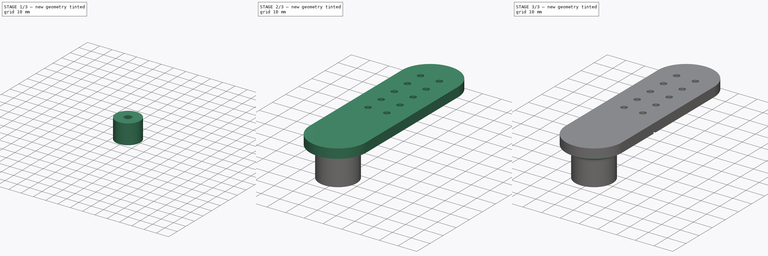
[diagram: build sequence overview — one tinted view per stage of 3, left to right]
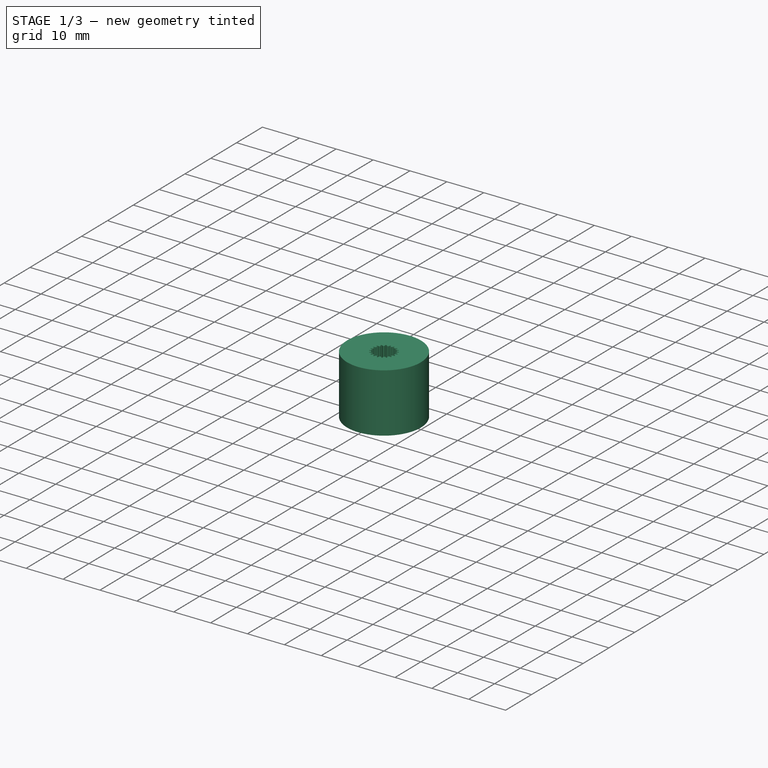
[diagram: stage 1 of 3 — iso view after this stage's code; geometry added in this stage tinted green]
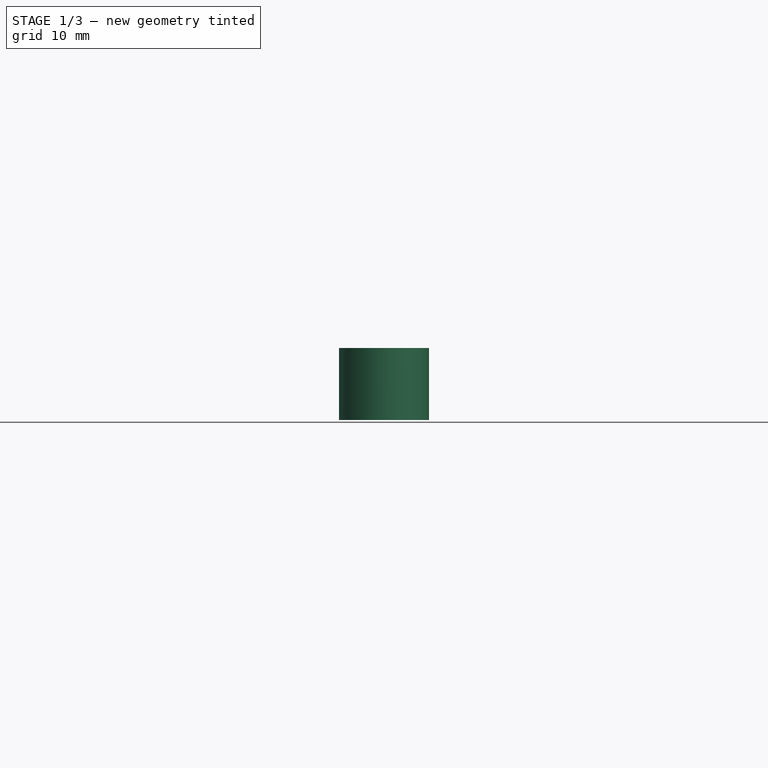
[diagram: stage 1 of 3 — front view after this stage's code; geometry added in this stage tinted green]
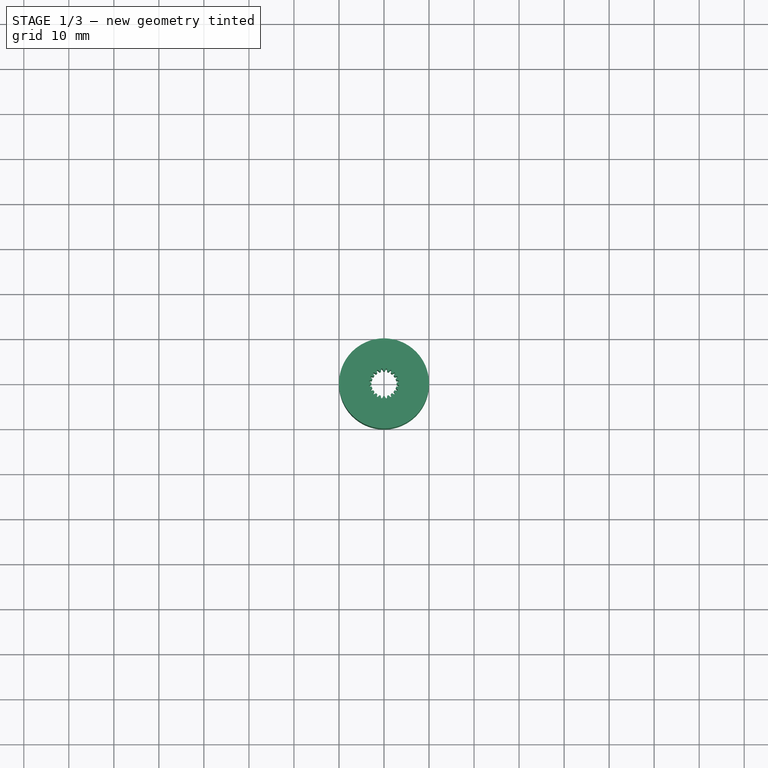
[diagram: stage 1 of 3 — top view after this stage's code; geometry added in this stage tinted green]
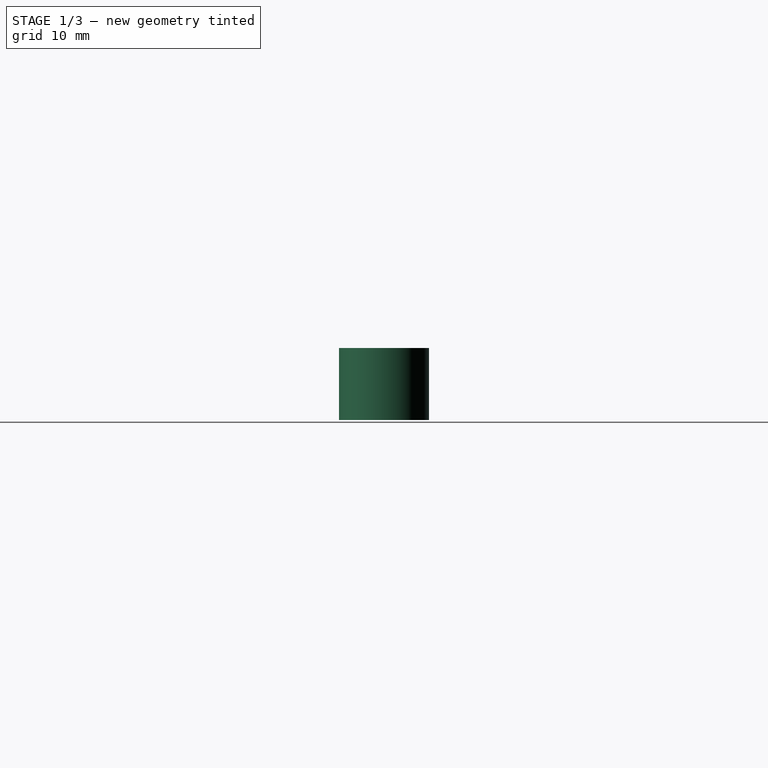
[diagram: stage 1 of 3 — right view after this stage's code; geometry added in this stage tinted green]
FCSTD DOCUMENT  (FreeCAD 0.19R24276 (Git))
Label: C1
License: All rights reserved
LicenseURL: http://en.wikipedia.org/wiki/All_rights_reserved
objects: Sketcher::SketchObject×4, PartDesign::Pad×2, PartDesign::Pocket×2, Part::Part2DObjectPython×1, PartDesign::Fillet×1, PartDesign::Body×1
note: 16 computed .brp shape members not serialized (recipe doc carries the construction recipe); baked Part::Feature solids carry a one-line shape summary decoded from their .brp

FEATURE [Sketcher::SketchObject] Sketch  label="IN_SHAFT_SKT"
  FullyConstrained = true
  MapMode = 5
  Support = -> [XY_Plane]
  sketch-geometry (1):
    g0: Circle CenterX=0 CenterY=0 CenterZ=0 NormalX=0 NormalY=0 NormalZ=1 AngleXU=0 Radius=10
  constraints (2):
    c: Coincident(g0,g-1)
    c: Radius(g0) = 10
FEATURE [PartDesign::Pad] Pad
  Direction = (1,1,1)
  Length = 16
  Length2 = 100
  Profile = -> Sketch
  Type = 0
FEATURE [Part::Part2DObjectPython] InvoluteGear  # Draft 2D object (typed FeaturePython)
  ExternalGear = false
  HighPrecision = false
  Modules = 0.3
  NumberOfTeeth = 20
  PressureAngle = 20
FEATURE [PartDesign::Pocket] Pocket
  BaseFeature = -> Pad
  Length = 16
  Length2 = 100
  Profile = -> InvoluteGear
  Reversed = true
  Type = 0
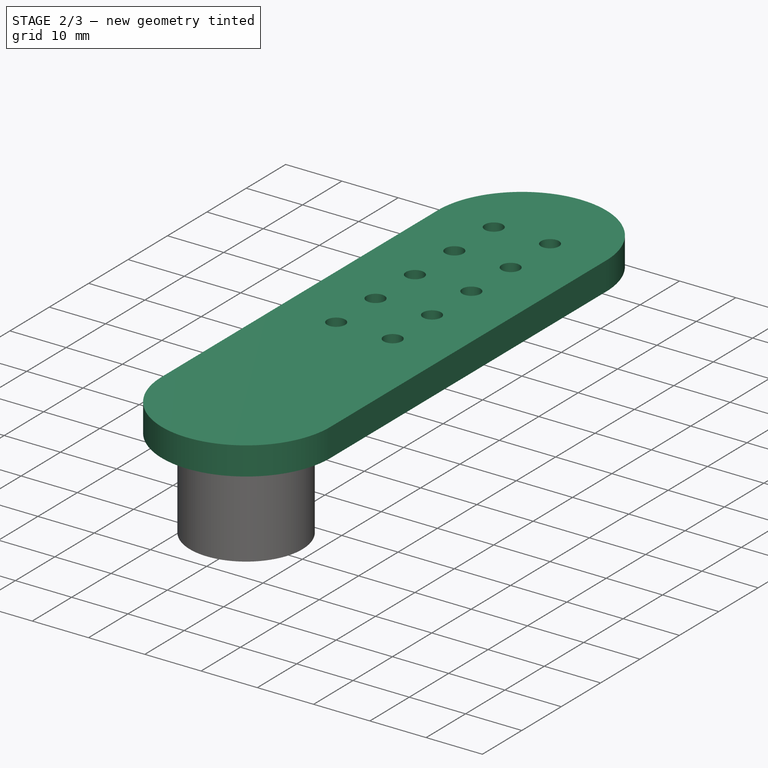
[diagram: stage 2 of 3 — iso view after this stage's code; geometry added in this stage tinted green]
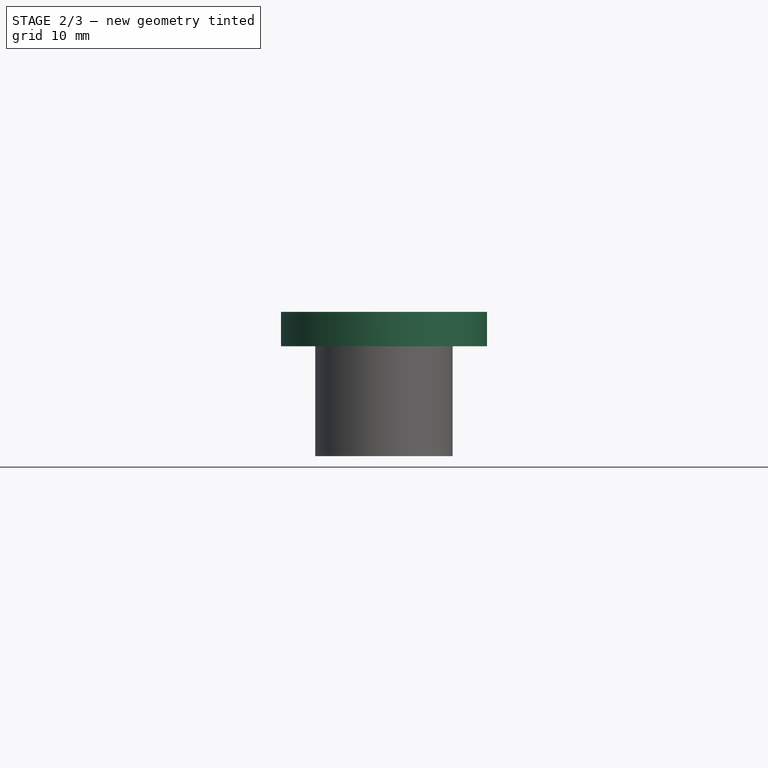
[diagram: stage 2 of 3 — front view after this stage's code; geometry added in this stage tinted green]
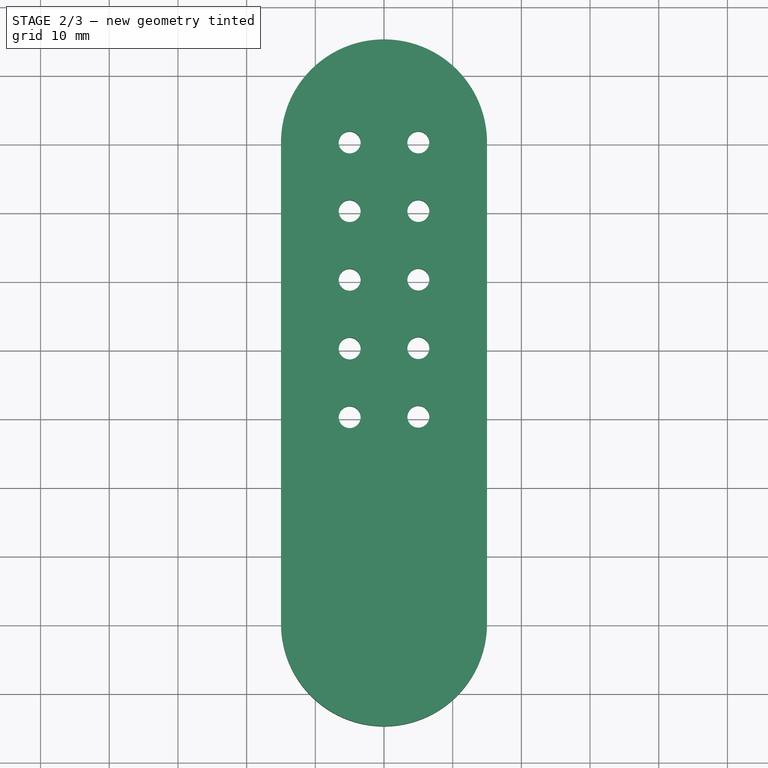
[diagram: stage 2 of 3 — top view after this stage's code; geometry added in this stage tinted green]
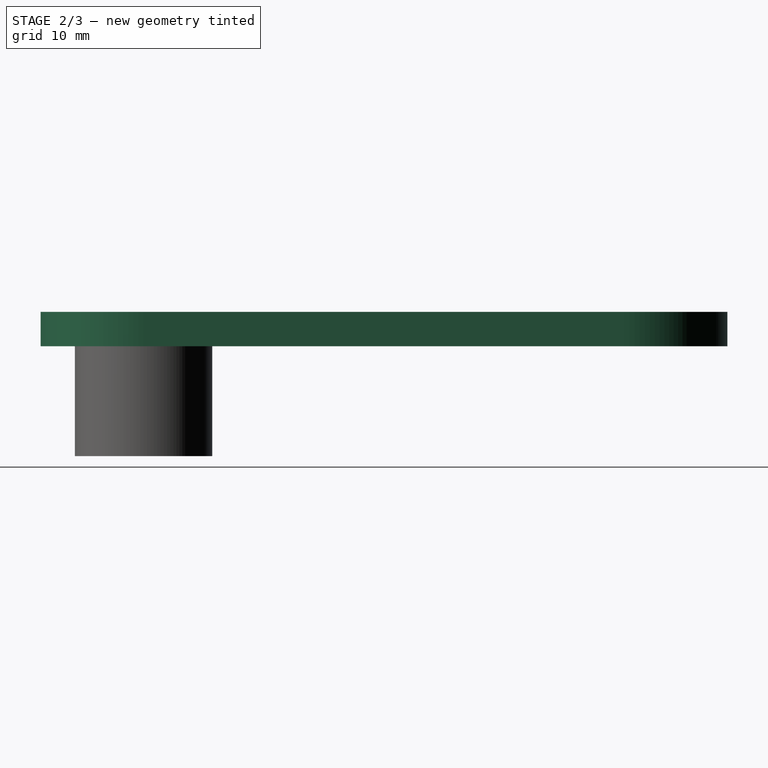
[diagram: stage 2 of 3 — right view after this stage's code; geometry added in this stage tinted green]
FEATURE [Sketcher::SketchObject] Sketch002  label="BERO_SKT"
  FullyConstrained = false
  MapMode = 5
  Placement = pos=(0,0,16) rot=(0,0,1;0rad)
  Support = -> [Pocket]
  sketch-geometry (19):
    g0: ArcOfCircle CenterX=0 CenterY=70 CenterZ=0 NormalX=0 NormalY=0 NormalZ=1 AngleXU=0 Radius=15 StartAngle=0 EndAngle=3.14159
    g1: ArcOfCircle CenterX=0 CenterY=0 CenterZ=0 NormalX=0 NormalY=0 NormalZ=1 AngleXU=0 Radius=15 StartAngle=3.14159 EndAngle=6.28319
    g2: LineSegment StartX=-15 StartY=70 StartZ=0 EndX=-15 EndY=0 EndZ=0
    g3: LineSegment StartX=15 StartY=70 StartZ=0 EndX=15 EndY=0 EndZ=0
    g4: Circle CenterX=-5 CenterY=70 CenterZ=0 NormalX=0 NormalY=0 NormalZ=1 AngleXU=0 Radius=1.6
    g5: LineSegment StartX=-5 StartY=70 StartZ=0 EndX=5 EndY=70 EndZ=0
    g6: Circle CenterX=5 CenterY=70 CenterZ=0 NormalX=0 NormalY=0 NormalZ=1 AngleXU=0 Radius=1.6
    g7: Circle CenterX=-5 CenterY=60 CenterZ=0 NormalX=0 NormalY=0 NormalZ=1 AngleXU=0 Radius=1.6
    g8: Circle CenterX=5 CenterY=60.0172 CenterZ=0 NormalX=0 NormalY=0 NormalZ=1 AngleXU=0 Radius=1.6
    g9: LineSegment StartX=-5 StartY=70 StartZ=0 EndX=-5 EndY=60 EndZ=0
    g10: Circle CenterX=-5 CenterY=50 CenterZ=0 NormalX=0 NormalY=0 NormalZ=1 AngleXU=0 Radius=1.6
    g11: Circle CenterX=5 CenterY=50.0344 CenterZ=0 NormalX=0 NormalY=0 NormalZ=1 AngleXU=0 Radius=1.6
    g12: LineSegment StartX=-5 StartY=60 StartZ=0 EndX=-5 EndY=50 EndZ=0
    g13: Circle CenterX=-5 CenterY=40 CenterZ=0 NormalX=0 NormalY=0 NormalZ=1 AngleXU=0 Radius=1.6
    g14: Circle CenterX=5 CenterY=40.0516 CenterZ=0 NormalX=0 NormalY=0 NormalZ=1 AngleXU=0 Radius=1.6
    g15: LineSegment StartX=-5 StartY=50 StartZ=0 EndX=-5 EndY=40 EndZ=0
    g16: Circle CenterX=-5 CenterY=30 CenterZ=0 NormalX=0 NormalY=0 NormalZ=1 AngleXU=0 Radius=1.6
    g17: Circle CenterX=5 CenterY=30.0688 CenterZ=0 NormalX=0 NormalY=0 NormalZ=1 AngleXU=0 Radius=1.6
    g18: LineSegment StartX=-5 StartY=40 StartZ=0 EndX=-5 EndY=30 EndZ=0
  constraints (49):
    c: Tangent(g0,g3) = 1.5708
    c: Tangent(g0,g2) = -1.5708
    c: Vertical(g2)
    c: Equal(g0,g1)
    c: PointOnObject(g0,g-2)
    c: Coincident(g1,g-1)
    c: PointOnObject(g1,g-1)
    c: PointOnObject(g1,g-1)
    c: DistanceY(g1,g0) = 70
    c: DistanceX(g0,g0) = 30
    c: Symmetric(g0,g0,g0)
    c: DistanceY(g2,g2) = 70
    c: DistanceY(g3,g3) = 70
    c: Radius(g4) = 1.6
    c: DistanceY(g4,g0) = 0
    c: DistanceX(g0,g4) = 10
    c: Coincident(g4,g5)
    c: Angle(g5) = 0
    c: Equal(g4,g6) = 1.6
    c: Coincident(g6,g5)
    c: DistanceX(g4,g6) = 10
    c: Radius(g7) = 1.6
    c: Equal(g7,g8) = 1.6
    c: DistanceX(g7,g8) = 10
    c: Coincident(g4,g9)
    c: Coincident(g7,g9)
    c: Distance(g9) = 10
    c: Angle(g9) = -1.5708
    c: Radius(g10) = 1.6
    c: Equal(g10,g11) = 1.6
    c: DistanceX(g10,g11) = 10
    c: Coincident(g7,g12)
    c: Coincident(g10,g12)
    c: Equal(g9,g12)
    c: Parallel(g12,g9)
    c: Radius(g13) = 1.6
    c: Equal(g13,g14) = 1.6
    c: DistanceX(g13,g14) = 10
    c: Coincident(g10,g15)
    c: Coincident(g13,g15)
    c: Equal(g9,g15)
    c: Parallel(g15,g9)
    c: Radius(g16) = 1.6
    c: Equal(g16,g17) = 1.6
    c: DistanceX(g16,g17) = 10
    c: Coincident(g13,g18)
    c: Coincident(g16,g18)
    c: Equal(g9,g18)
    c: Parallel(g18,g9)
FEATURE [PartDesign::Pad] Pad001  label="BERO"
  BaseFeature = -> Pocket
  Direction = (1,1,1)
  Length = 5
  Length2 = 100
  Profile = -> Sketch002
  Type = 0
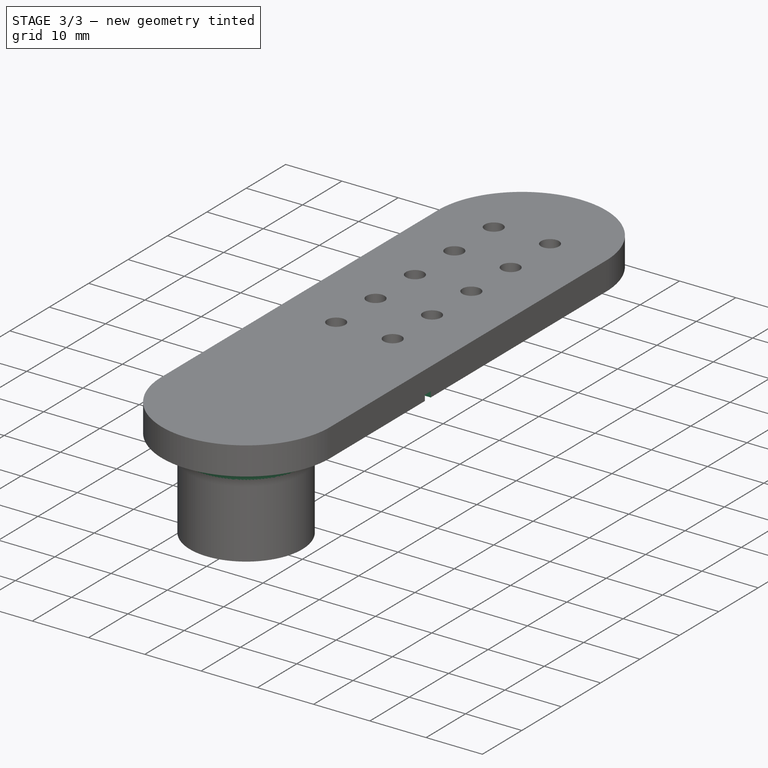
[diagram: stage 3 of 3 — iso view after this stage's code; geometry added in this stage tinted green]
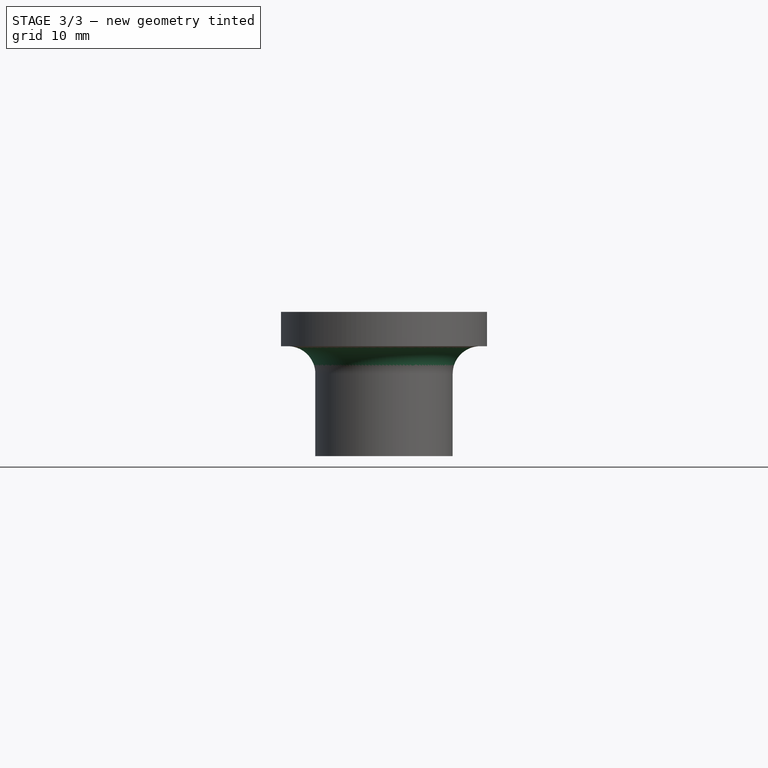
[diagram: stage 3 of 3 — front view after this stage's code; geometry added in this stage tinted green]
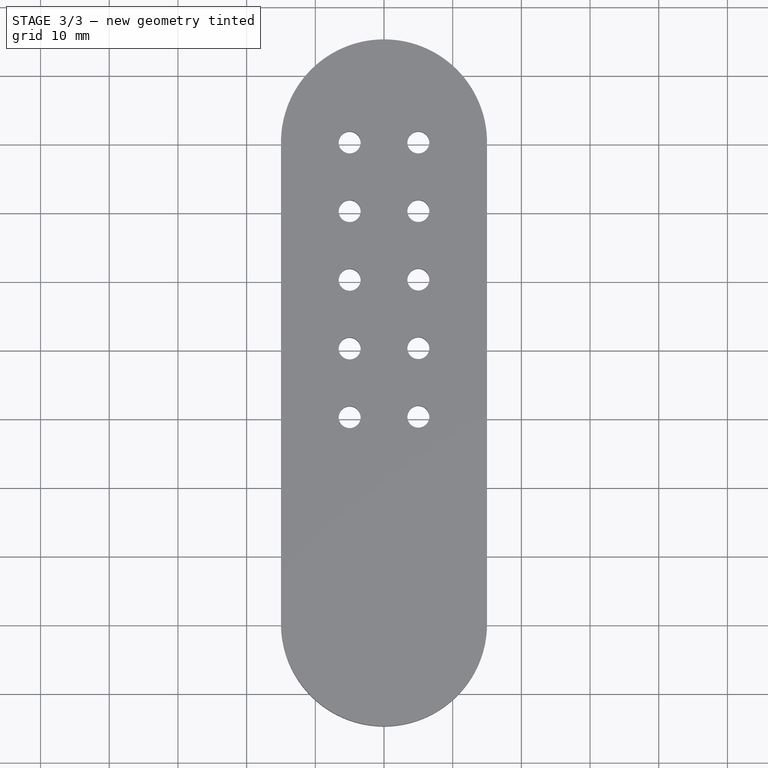
[diagram: stage 3 of 3 — top view after this stage's code; geometry added in this stage tinted green]
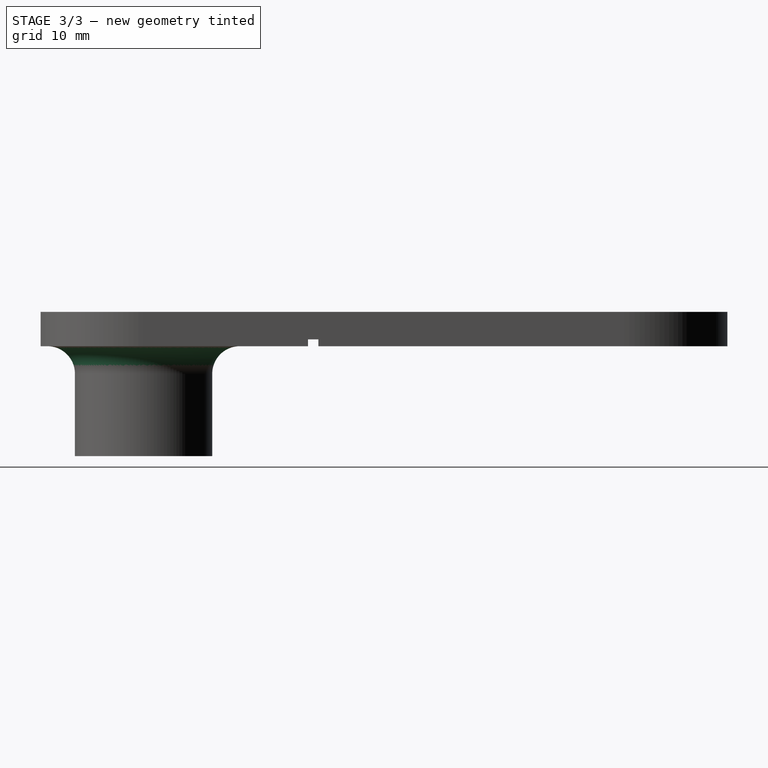
[diagram: stage 3 of 3 — right view after this stage's code; geometry added in this stage tinted green]
FEATURE [Sketcher::SketchObject] Sketch004  label="BERO_MIZO_SKT"
  FullyConstrained = false
  MapMode = 5
  Placement = pos=(0,0,16) rot=(1,0,0;3.14159rad)
  Support = -> [Pad001]
  sketch-geometry (4):
    g0: LineSegment StartX=-15 StartY=-23.9398 StartZ=0 EndX=15 EndY=-23.9398 EndZ=0
    g1: LineSegment StartX=15 StartY=-23.9398 StartZ=0 EndX=15 EndY=-25.4398 EndZ=0
    g2: LineSegment StartX=15 StartY=-25.4398 StartZ=0 EndX=-15 EndY=-25.4398 EndZ=0
    g3: LineSegment StartX=-15 StartY=-25.4398 StartZ=0 EndX=-15 EndY=-23.9398 EndZ=0
  constraints (11):
    c: Coincident(g0,g1)
    c: Coincident(g1,g2)
    c: Coincident(g2,g3)
    c: Coincident(g3,g0)
    c: Horizontal(g0)
    c: Horizontal(g2)
    c: Vertical(g1)
    c: Vertical(g3)
    c: DistanceY(g3,g3) = 1.5
    c: DistanceX(g0,g0) = 30
    c: DistanceX(g0,g-1) = 15
FEATURE [PartDesign::Pocket] Pocket001
  BaseFeature = -> Pad001
  Length = 1
  Length2 = 100
  Profile = -> Sketch004
  Type = 0
FEATURE [PartDesign::Fillet] Fillet
  Base = -> Pocket001 [Edge45]
  BaseFeature = -> Pocket001
  Radius = 4
  SupportTransform = false
FEATURE [Sketcher::SketchObject] Sketch005
  FullyConstrained = true
  MapMode = 5
  Support = -> [XY_Plane]
FEATURE [PartDesign::Body] Body
  Group = -> [Sketch,Pad,InvoluteGear,Pocket,Sketch002,Pad001,Sketch004,Pocket001,Fillet,Sketch005]
  Origin = -> Origin
  Tip = -> Fillet
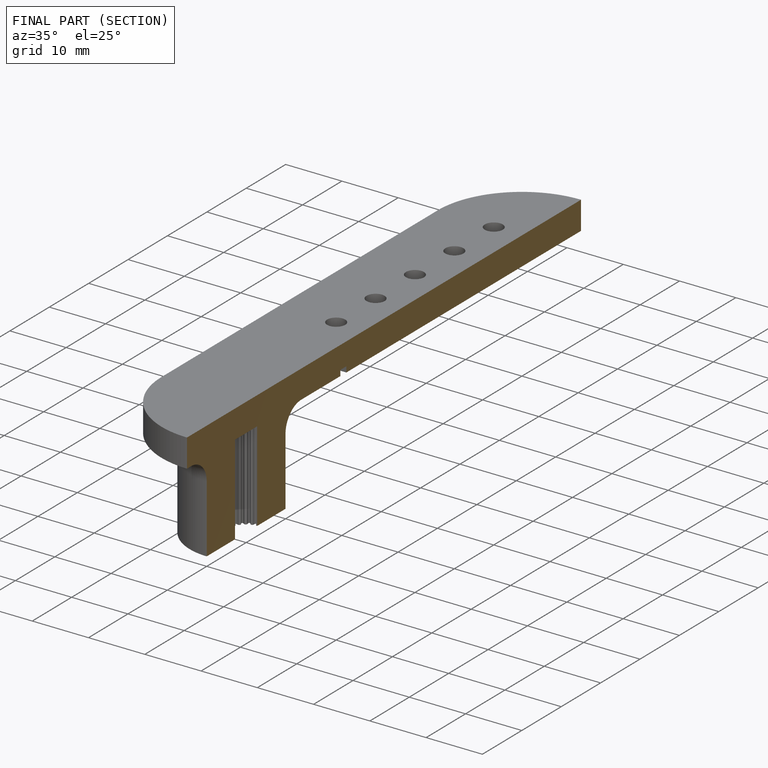
[diagram: finished part — half-section view (interior)]
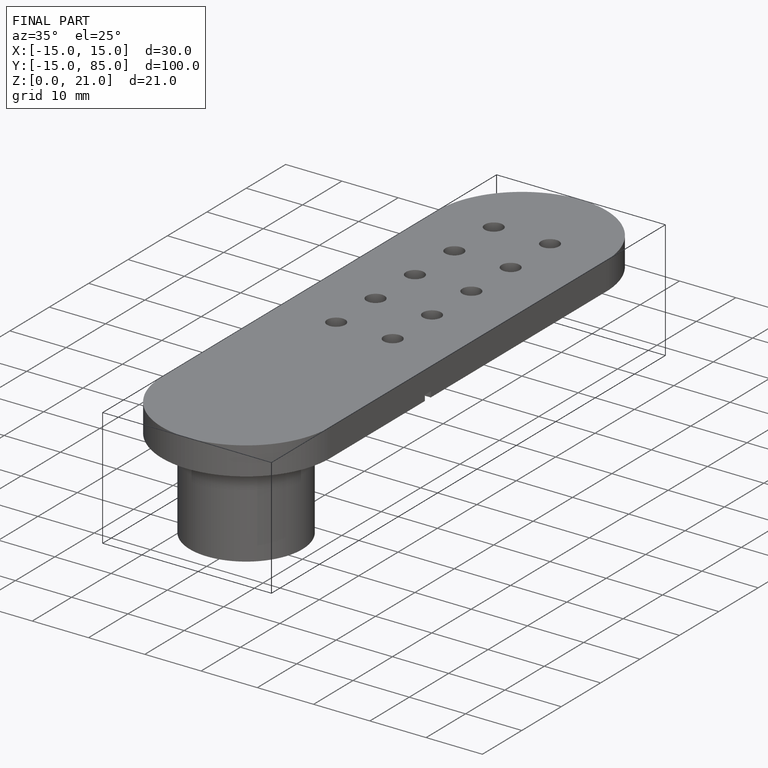
[diagram: finished part — iso view with bounding-box wireframe]
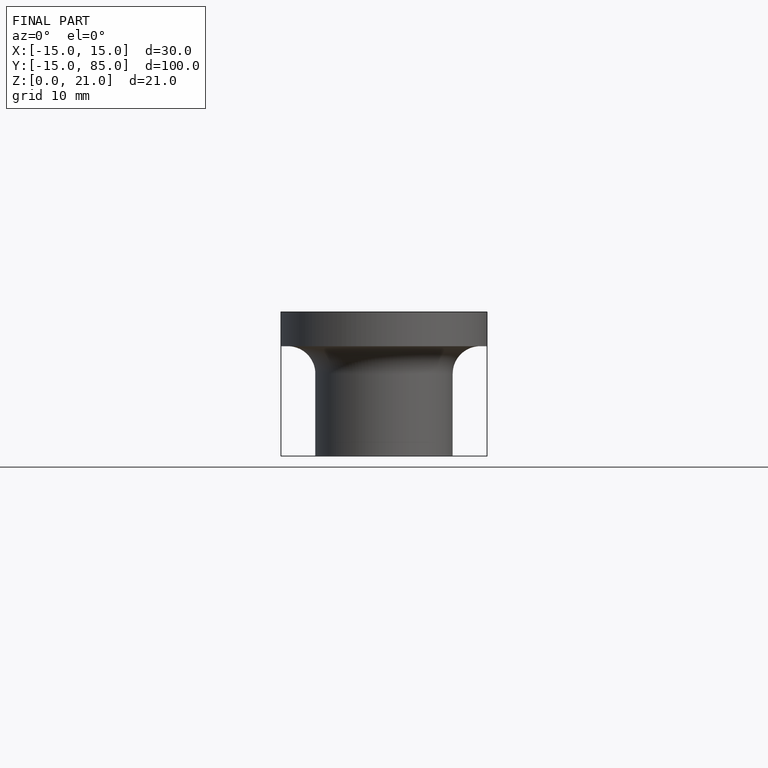
[diagram: finished part — front view with bounding-box wireframe]
